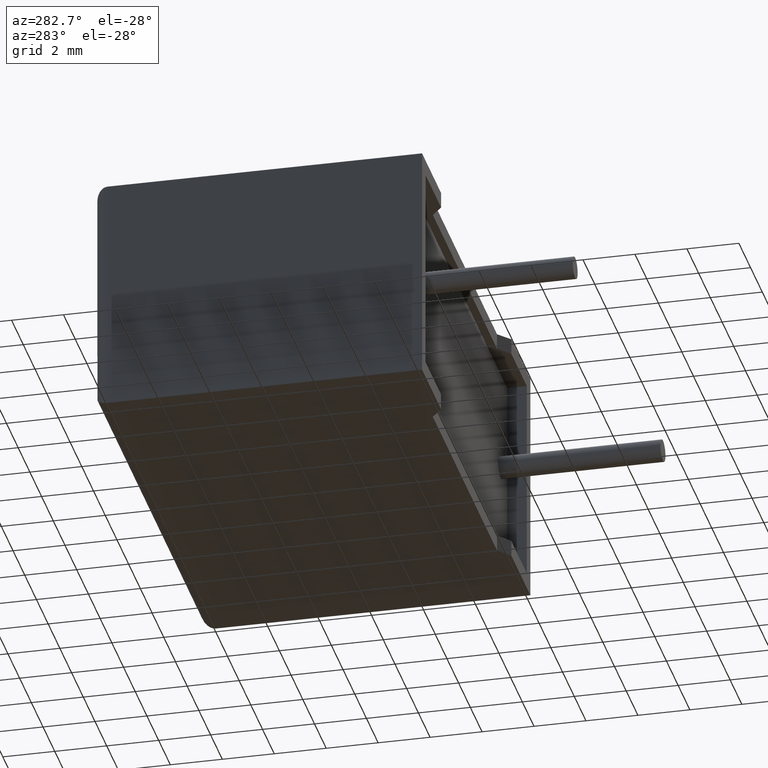
[diagram: clean part render]
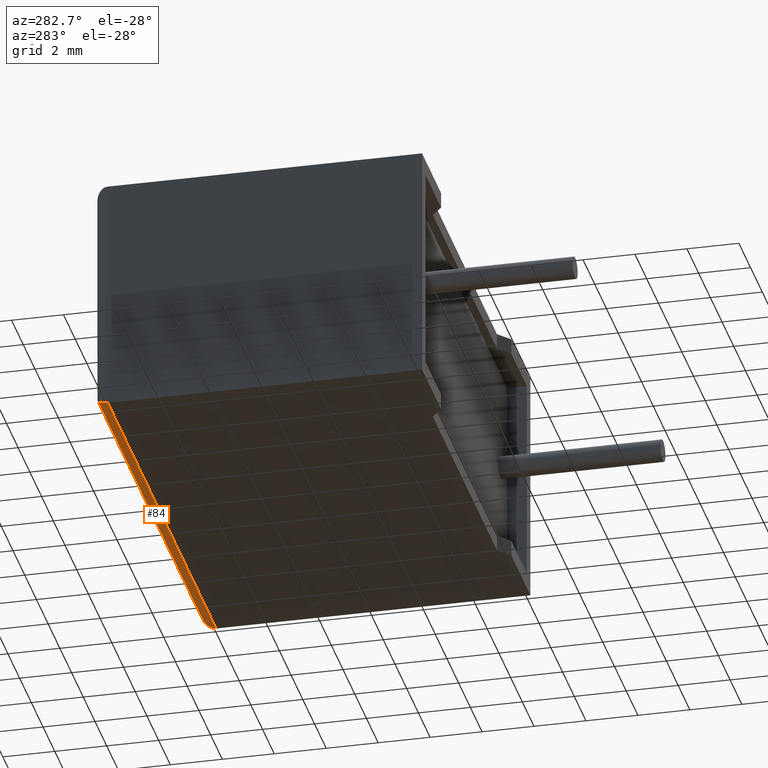
[diagram: same view with one face highlighted and labeled with its STEP entity id]
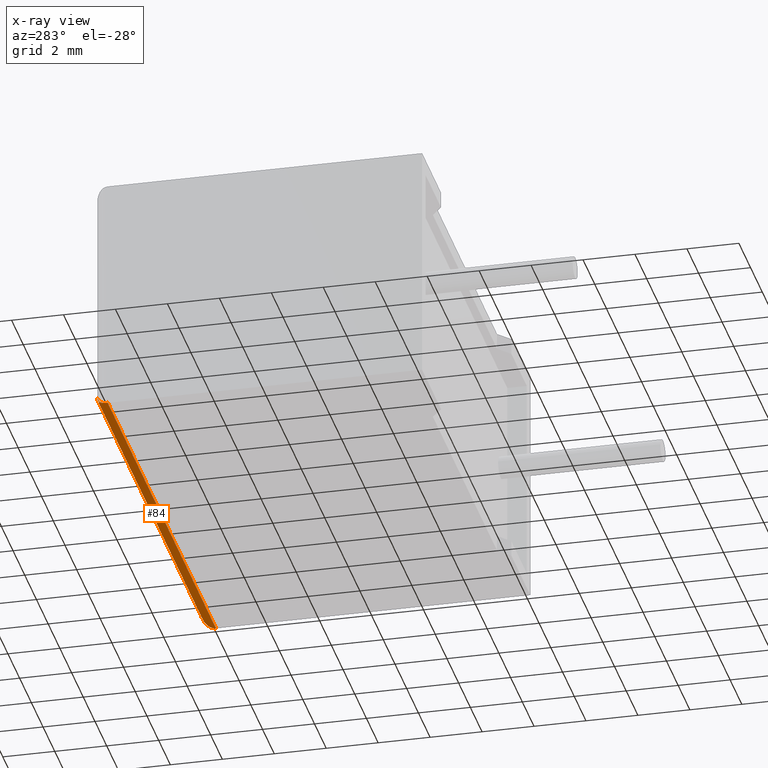
[diagram: x-ray of the same camera — body ghosted, the highlighted face saturated]
A machine part, auxiliary view. The second image highlights one B-rep face of the part: STEP entity #84.
The next image is the same camera in x-ray: the body ghosted, the highlighted face saturated — about 0% of this face is hidden behind the body in this view.
In plain terms, the highlighted cylindrical surface (edge-blend (fillet) strip) has radius 0.5 mm, axis along (1, 0, 0).
Its self-contained STEP definition (entity closure, byte-faithful):
#24 = CARTESIAN_POINT ( 'NONE',  ( 0.000000000000000000, 12.09999999999999964, 0.000000000000000000 ) ) ;
#84 = ADVANCED_FACE ( 'NONE', ( #788 ), #316, .T. ) ;
#175 =( BOUNDED_CURVE ( )  B_SPLINE_CURVE ( 3, ( #2489, #325, #2670, #2701 ),
 .UNSPECIFIED., .F., .T. ) 
 B_SPLINE_CURVE_WITH_KNOTS ( ( 4, 4 ),
 ( 4.712388980384689674, 6.283185307179586232 ),
 .UNSPECIFIED. ) 
 CURVE ( )  GEOMETRIC_REPRESENTATION_ITEM ( )  RATIONAL_B_SPLINE_CURVE ( ( 1.000000000000000000, 0.8047378541243649375, 0.8047378541243649375, 1.000000000000000000 ) ) 
 REPRESENTATION_ITEM ( '' )  );
#294 = VERTEX_POINT ( 'NONE', #960 ) ;
#311 = CARTESIAN_POINT ( 'NONE',  ( 18.50000000000000000, 12.09999999999999964, 0.000000000000000000 ) ) ;
#316 = CYLINDRICAL_SURFACE ( 'NONE', #1612, 0.5000000000000000000 ) ;
#325 = CARTESIAN_POINT ( 'NONE',  ( 18.29289321881345032, 12.59999999999999609, 0.2071067811865480723 ) ) ;
#336 = DIRECTION ( 'NONE',  ( 1.000000000000000000, -0.000000000000000000, -0.000000000000000000 ) ) ;
#400 = VERTEX_POINT ( 'NONE', #2233 ) ;
#621 = LINE ( 'NONE', #1013, #2215 ) ;
#788 = FACE_OUTER_BOUND ( 'NONE', #1849, .T. ) ;
#823 = DIRECTION ( 'NONE',  ( -1.000000000000000000, 0.000000000000000000, 0.000000000000000000 ) ) ;
#958 = EDGE_CURVE ( 'NONE', #1554, #400, #621, .T. ) ;
#960 = CARTESIAN_POINT ( 'NONE',  ( 0.000000000000000000, 12.09999999999999964, 0.000000000000000000 ) ) ;
#1013 = CARTESIAN_POINT ( 'NONE',  ( 0.000000000000000000, 12.59999999999999964, 0.5000000000000004441 ) ) ;
#1021 = LINE ( 'NONE', #311, #2473 ) ;
#1024 = DIRECTION ( 'NONE',  ( 1.000000000000000000, 0.000000000000000000, 0.000000000000000000 ) ) ;
#1187 = CARTESIAN_POINT ( 'NONE',  ( 18.00000000000000000, 12.59999999999999964, 0.5000000000000004441 ) ) ;
#1208 = VERTEX_POINT ( 'NONE', #2169 ) ;
#1241 = DIRECTION ( 'NONE',  ( 0.000000000000000000, 0.000000000000000000, -1.000000000000000000 ) ) ;
#1254 = EDGE_CURVE ( 'NONE', #400, #294, #2927, .T. ) ;
#1294 = EDGE_CURVE ( 'NONE', #294, #1208, #1021, .T. ) ;
#1303 = EDGE_CURVE ( 'NONE', #1554, #1208, #175, .T. ) ;
#1397 = CARTESIAN_POINT ( 'NONE',  ( 1.442892915397364602E-16, 12.39289321881344996, 5.779701605339383077E-16 ) ) ;
#1496 = ORIENTED_EDGE ( 'NONE', *, *, #958, .F. ) ;
#1554 = VERTEX_POINT ( 'NONE', #1187 ) ;
#1612 = AXIS2_PLACEMENT_3D ( 'NONE', #2898, #1024, #1241 ) ;
#1676 = CARTESIAN_POINT ( 'NONE',  ( 0.5000000000000000000, 12.59999999999999964, 0.5000000000000004441 ) ) ;
#1849 = EDGE_LOOP ( 'NONE', ( #2656, #2504, #1932, #1496 ) ) ;
#1932 = ORIENTED_EDGE ( 'NONE', *, *, #1254, .F. ) ;
#2169 = CARTESIAN_POINT ( 'NONE',  ( 18.50000000000000000, 12.09999999999999964, 0.000000000000000000 ) ) ;
#2215 = VECTOR ( 'NONE', #823, 1000.000000000000000 ) ;
#2233 = CARTESIAN_POINT ( 'NONE',  ( 0.5000000000000000000, 12.59999999999999964, 0.5000000000000004441 ) ) ;
#2473 = VECTOR ( 'NONE', #336, 1000.000000000000000 ) ;
#2489 = CARTESIAN_POINT ( 'NONE',  ( 18.00000000000000000, 12.59999999999999964, 0.5000000000000004441 ) ) ;
#2504 = ORIENTED_EDGE ( 'NONE', *, *, #1294, .F. ) ;
#2632 = CARTESIAN_POINT ( 'NONE',  ( 0.2071067811865475172, 12.59999999999999432, 0.2071067811865479058 ) ) ;
#2656 = ORIENTED_EDGE ( 'NONE', *, *, #1303, .T. ) ;
#2670 = CARTESIAN_POINT ( 'NONE',  ( 18.50000000000000000, 12.39289321881345174, 5.421010862427522170E-16 ) ) ;
#2701 = CARTESIAN_POINT ( 'NONE',  ( 18.50000000000000000, 12.09999999999999964, 0.000000000000000000 ) ) ;
#2898 = CARTESIAN_POINT ( 'NONE',  ( 0.000000000000000000, 12.09999999999999964, 0.5000000000000004441 ) ) ;
#2927 =( BOUNDED_CURVE ( )  B_SPLINE_CURVE ( 3, ( #1676, #2632, #1397, #24 ),
 .UNSPECIFIED., .F., .T. ) 
 B_SPLINE_CURVE_WITH_KNOTS ( ( 4, 4 ),
 ( 1.570796326794896780, 3.141592653589793116 ),
 .UNSPECIFIED. ) 
 CURVE ( )  GEOMETRIC_REPRESENTATION_ITEM ( )  RATIONAL_B_SPLINE_CURVE ( ( 1.000000000000000000, 0.8047378541243650485, 0.8047378541243650485, 1.000000000000000000 ) ) 
 REPRESENTATION_ITEM ( '' )  );